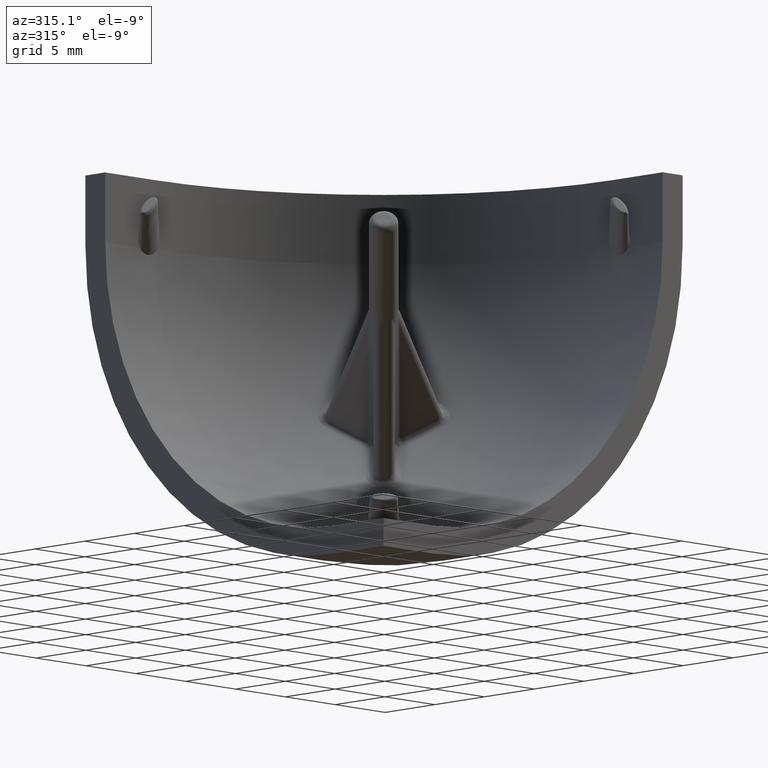
[diagram: clean part render]
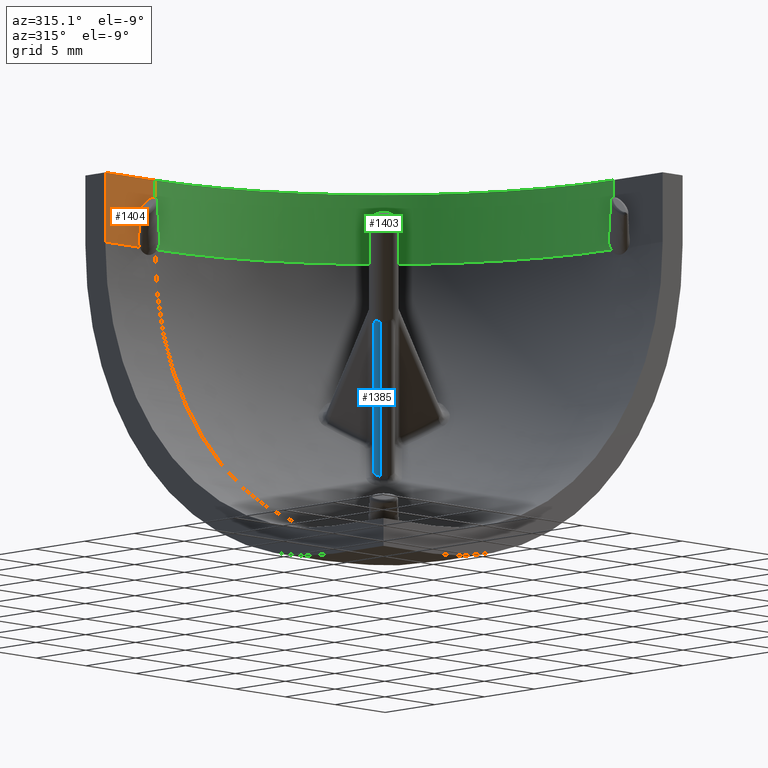
[diagram: same view with three faces highlighted in distinct colors, each labeled with its STEP entity id]
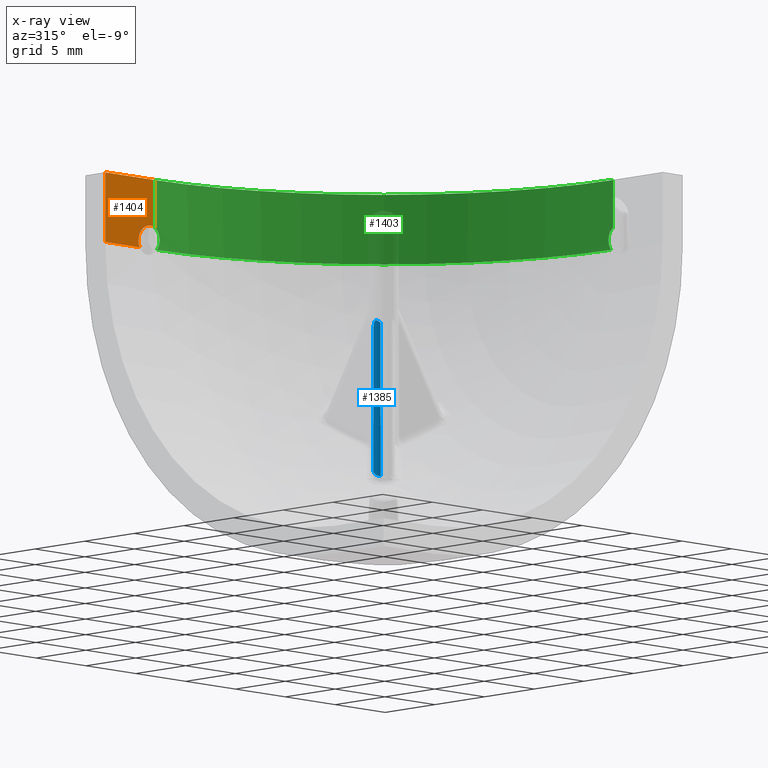
[diagram: x-ray of the same camera — body ghosted, the three highlighted faces saturated]
A machine part, auxiliary view with three faces highlighted in distinct colors.
The next image is the same camera in x-ray (body ghosted, the three faces saturated) — at least one of them is partly hidden behind the body in this view.
Their STEP definitions:

[orange] entity #1404 — the highlighted planar face has unit normal (0, -1, 0).
#20=PLANE('',#1557);
#216=FACE_OUTER_BOUND('',#306,.T.);
#306=EDGE_LOOP('',(#1093,#1094,#1095,#1096,#1097));
#396=LINE('',#5419,#454);
#411=LINE('',#5481,#469);
#412=LINE('',#5483,#470);
#413=LINE('',#5484,#471);
#454=VECTOR('',#1784,1000.);
#469=VECTOR('',#1821,1000.);
#470=VECTOR('',#1824,1000.);
#471=VECTOR('',#1825,1000.);
#493=B_SPLINE_CURVE_WITH_KNOTS('',3,(#2337,#2338,#2339,#2340,#2341,#2342,
#2343,#2344,#2345,#2346,#2347,#2348,#2349,#2350,#2351,#2352,#2353,#2354),
 .UNSPECIFIED.,.F.,.F.,(4,2,2,2,2,2,2,2,4),(-0.175158830343458,-0.150281693985812,
-0.132682597217302,-0.111386682224554,-0.0874374773800556,-0.0634960599441935,
-0.0422456438351034,-0.0247462977978103,-1.00000064903738E-6),
 .UNSPECIFIED.);
#562=VERTEX_POINT('',#2146);
#568=VERTEX_POINT('',#2330);
#661=VERTEX_POINT('',#5405);
#667=VERTEX_POINT('',#5417);
#679=VERTEX_POINT('',#5479);
#707=EDGE_CURVE('',#562,#568,#493,.T.);
#823=EDGE_CURVE('',#667,#661,#396,.T.);
#845=EDGE_CURVE('',#568,#679,#411,.T.);
#846=EDGE_CURVE('',#661,#679,#412,.T.);
#847=EDGE_CURVE('',#667,#562,#413,.T.);
#1093=ORIENTED_EDGE('',*,*,#707,.T.);
#1094=ORIENTED_EDGE('',*,*,#845,.T.);
#1095=ORIENTED_EDGE('',*,*,#846,.F.);
#1096=ORIENTED_EDGE('',*,*,#823,.F.);
#1097=ORIENTED_EDGE('',*,*,#847,.T.);
#1404=ADVANCED_FACE('',(#216),#20,.T.);
#1557=AXIS2_PLACEMENT_3D('',#5482,#1822,#1823);
#1784=DIRECTION('',(0.,0.,1.));
#1821=DIRECTION('',(0.,0.,1.));
#1822=DIRECTION('center_axis',(0.,-1.,0.));
#1823=DIRECTION('ref_axis',(0.,0.,-1.));
#1824=DIRECTION('',(1.,0.,0.));
#1825=DIRECTION('',(1.,0.,0.));
#2146=CARTESIAN_POINT('',(3.44771592869993,28.,-5.));
#2330=CARTESIAN_POINT('',(4.99999999999999,28.,-3.44771591022161));
#2337=CARTESIAN_POINT('Ctrl Pts',(3.44771592869995,28.,-4.99999999999999));
#2338=CARTESIAN_POINT('Ctrl Pts',(3.40447842649714,28.,-4.92949119405497));
#2339=CARTESIAN_POINT('Ctrl Pts',(3.37146025388926,27.9999999999999,-4.85429070616017));
#2340=CARTESIAN_POINT('Ctrl Pts',(3.33360077910329,27.9999999999999,-4.71889109964527));
#2341=CARTESIAN_POINT('Ctrl Pts',(3.31675925405084,28.,-4.63896858441278));
#2342=CARTESIAN_POINT('Ctrl Pts',(3.31600390730806,28.,-4.41350614569592));
#2343=CARTESIAN_POINT('Ctrl Pts',(3.34012062610048,28.000000000011,-4.27447569468825));
#2344=CARTESIAN_POINT('Ctrl Pts',(3.46631956890094,28.000000000011,-3.96642659211979));
#2345=CARTESIAN_POINT('Ctrl Pts',(3.5694310528274,28.,-3.81652393157946));
#2346=CARTESIAN_POINT('Ctrl Pts',(3.81794455940526,28.,-3.5683374429836));
#2347=CARTESIAN_POINT('Ctrl Pts',(3.96794335044046,28.0000000000116,-3.46543238256616));
#2348=CARTESIAN_POINT('Ctrl Pts',(4.27583596418542,28.0000000000116,-3.33980173023811));
#2349=CARTESIAN_POINT('Ctrl Pts',(4.41476653742614,28.,-3.31583051883537));
#2350=CARTESIAN_POINT('Ctrl Pts',(4.64001959710618,28.,-3.31691080541465));
#2351=CARTESIAN_POINT('Ctrl Pts',(4.71971963180852,27.9999999999999,-3.33378675359859));
#2352=CARTESIAN_POINT('Ctrl Pts',(4.85469935658813,27.9999999999999,-3.37163976929688));
#2353=CARTESIAN_POINT('Ctrl Pts',(4.92968289561505,28.,-3.40459602571644));
#2354=CARTESIAN_POINT('Ctrl Pts',(5.,28.,-3.44771591022161));
#5405=CARTESIAN_POINT('',(4.89858719658942E-16,28.,0.));
#5417=CARTESIAN_POINT('',(4.89858719658942E-16,28.,-5.));
#5419=CARTESIAN_POINT('',(4.89858719658942E-16,28.,-5.));
#5479=CARTESIAN_POINT('',(4.99999999999999,28.,0.));
#5481=CARTESIAN_POINT('',(4.99999999999999,28.,-5.));
#5482=CARTESIAN_POINT('Origin',(4.89858719658942E-16,28.,-5.));
#5483=CARTESIAN_POINT('',(4.89858719658942E-16,28.,0.));
#5484=CARTESIAN_POINT('',(4.89858719658942E-16,28.,-5.));

[blue] entity #1385 — the highlighted cylindrical surface (edge-blend (fillet) strip) has radius 0.5 mm, axis along (0.443, 0.443, -0.7795).
#67=ELLIPSE('',#1497,0.494300345772193,0.48532569774064);
#69=CYLINDRICAL_SURFACE('',#1496,0.5);
#197=FACE_OUTER_BOUND('',#286,.T.);
#286=EDGE_LOOP('',(#955,#956,#957,#958,#959,#960));
#378=LINE('',#3119,#436);
#379=LINE('',#3145,#437);
#436=VECTOR('',#1668,1000.);
#437=VECTOR('',#1671,1000.);
#506=B_SPLINE_CURVE_WITH_KNOTS('',3,(#2998,#2999,#3000,#3001,#3002,#3003,
#3004,#3005,#3006,#3007,#3008,#3009,#3010,#3011,#3012,#3013,#3014,#3015,
#3016,#3017,#3018,#3019,#3020,#3021,#3022,#3023,#3024,#3025,#3026,#3027,
#3028,#3029,#3030,#3031,#3032,#3033,#3034,#3035,#3036,#3037,#3038,#3039,
#3040,#3041,#3042,#3043,#3044,#3045,#3046,#3047,#3048,#3049,#3050,#3051,
#3052,#3053,#3054,#3055,#3056,#3057,#3058,#3059,#3060,#3061,#3062,#3063,
#3064,#3065,#3066,#3067),.UNSPECIFIED.,.F.,.F.,(4,3,3,3,3,3,3,3,3,3,3,3,
3,3,3,3,3,3,3,3,3,3,3,4),(0.,1.21604168909339E-5,6.23145992788702E-5,0.000103363543572938,
0.000109063738990563,0.000151815204622753,0.000173190937438848,0.000183878803846895,
0.000189222737050919,0.000189461569267208,0.00019189470365293,0.000193230686953936,
0.000194566670254942,0.000237756202463946,0.000243208337818678,0.000267529171600546,
0.000279689588491479,0.000291850005382413,0.000318580273448491,0.000340491672946149,
0.000343484275540402,0.000348131305899198,0.00037488141905195,0.000389133329631535),
 .UNSPECIFIED.);
#507=B_SPLINE_CURVE_WITH_KNOTS('',3,(#3069,#3070,#3071,#3072,#3073,#3074,
#3075,#3076,#3077,#3078,#3079,#3080,#3081,#3082,#3083,#3084,#3085,#3086,
#3087,#3088,#3089,#3090,#3091,#3092,#3093,#3094,#3095,#3096,#3097,#3098,
#3099,#3100,#3101,#3102,#3103,#3104,#3105,#3106,#3107,#3108,#3109,#3110,
#3111,#3112,#3113,#3114,#3115,#3116,#3117),.UNSPECIFIED.,.F.,.F.,(4,3,3,
3,3,3,3,3,3,3,3,3,3,3,3,3,4),(0.000389133340509884,0.000434118860242792,
0.000482000410648891,0.000533147194030287,0.000579224442896195,0.000641232107333754,
0.000708176886763642,0.000769315545282505,0.000865155897092198,0.000965506261390967,
0.00107339878355765,0.00114949775005513,0.00131003703189267,0.00148285701590434,
0.00166323795930211,0.00185391261857454,0.00190986215960037),
 .UNSPECIFIED.);
#508=B_SPLINE_CURVE_WITH_KNOTS('',3,(#3121,#3122,#3123,#3124,#3125,#3126,
#3127,#3128,#3129,#3130,#3131,#3132,#3133,#3134,#3135,#3136,#3137,#3138,
#3139,#3140,#3141,#3142),.UNSPECIFIED.,.F.,.F.,(4,3,3,3,3,3,3,4),(0.000330833548131547,
0.000393468235858931,0.000476909363737872,0.000563570859487154,0.000592210054781606,
0.00067839191388207,0.000758424460810747,0.000789896573302422),
 .UNSPECIFIED.);
#589=VERTEX_POINT('',#2996);
#590=VERTEX_POINT('',#2997);
#591=VERTEX_POINT('',#3068);
#592=VERTEX_POINT('',#3118);
#593=VERTEX_POINT('',#3120);
#594=VERTEX_POINT('',#3143);
#729=EDGE_CURVE('',#589,#590,#506,.T.);
#730=EDGE_CURVE('',#590,#591,#507,.T.);
#731=EDGE_CURVE('',#592,#591,#378,.T.);
#732=EDGE_CURVE('',#593,#592,#508,.T.);
#733=EDGE_CURVE('',#594,#593,#67,.T.);
#734=EDGE_CURVE('',#589,#594,#379,.T.);
#955=ORIENTED_EDGE('',*,*,#729,.T.);
#956=ORIENTED_EDGE('',*,*,#730,.T.);
#957=ORIENTED_EDGE('',*,*,#731,.F.);
#958=ORIENTED_EDGE('',*,*,#732,.F.);
#959=ORIENTED_EDGE('',*,*,#733,.F.);
#960=ORIENTED_EDGE('',*,*,#734,.F.);
#1385=ADVANCED_FACE('',(#197),#69,.T.);
#1496=AXIS2_PLACEMENT_3D('',#2995,#1666,#1667);
#1497=AXIS2_PLACEMENT_3D('',#3144,#1669,#1670);
#1666=DIRECTION('center_axis',(0.442957580289609,0.442957580289605,-0.779472362645369));
#1667=DIRECTION('ref_axis',(-0.869420357315985,1.11022302462516E-16,-0.49407311431057));
#1668=DIRECTION('',(-0.442957580289609,-0.442957580289605,0.779472362645369));
#1669=DIRECTION('center_axis',(0.526859442243335,0.557667829798084,-0.641424757650761));
#1670=DIRECTION('ref_axis',(-0.130326680782894,0.798740010524187,0.587391991657986));
#1671=DIRECTION('',(0.442957580289609,0.442957580289605,-0.779472362645369));
#2995=CARTESIAN_POINT('Origin',(2.37042743809843,2.72398082869166,2.8950439643636));
#2996=CARTESIAN_POINT('',(10.1745347901295,10.5280881807226,-11.6360074794579));
#2997=CARTESIAN_POINT('',(9.95059596554906,10.7388595348002,-11.4557729983149));
#2998=CARTESIAN_POINT('Ctrl Pts',(10.1745347901295,10.5280881807226,-11.6360074794579));
#2999=CARTESIAN_POINT('Ctrl Pts',(10.1713139960445,10.5285583889709,-11.6335873767933));
#3000=CARTESIAN_POINT('Ctrl Pts',(10.1680990514111,10.5290596258302,-11.6311673475238));
#3001=CARTESIAN_POINT('Ctrl Pts',(10.1648909537059,10.5295938396847,-11.6287485343768));
#3002=CARTESIAN_POINT('Ctrl Pts',(10.1516595391196,10.5317971407171,-11.6187724293777));
#3003=CARTESIAN_POINT('Ctrl Pts',(10.1385500140226,10.5345607270275,-11.6088246903261));
#3004=CARTESIAN_POINT('Ctrl Pts',(10.1256229884541,10.5380322057601,-11.5989629060723));
#3005=CARTESIAN_POINT('Ctrl Pts',(10.1150427989826,10.5408734550901,-11.5908914788611));
#3006=CARTESIAN_POINT('Ctrl Pts',(10.1045854026414,10.5441892988497,-11.5828777196605));
#3007=CARTESIAN_POINT('Ctrl Pts',(10.0943056491184,10.5480729137986,-11.574961296057));
#3008=CARTESIAN_POINT('Ctrl Pts',(10.0928781677316,10.5486122057223,-11.5738619946663));
#3009=CARTESIAN_POINT('Ctrl Pts',(10.0914540372767,10.5491624433896,-11.5727644569218));
#3010=CARTESIAN_POINT('Ctrl Pts',(10.0900333955908,10.549723883866,-11.5716687488645));
#3011=CARTESIAN_POINT('Ctrl Pts',(10.0793785829461,10.5539346874384,-11.5634509384343));
#3012=CARTESIAN_POINT('Ctrl Pts',(10.0689187930013,10.5587751349882,-11.5553370352308));
#3013=CARTESIAN_POINT('Ctrl Pts',(10.0587201325,10.5643575709309,-11.5473481453466));
#3014=CARTESIAN_POINT('Ctrl Pts',(10.0536208022494,10.5671487889023,-11.5433537004045));
#3015=CARTESIAN_POINT('Ctrl Pts',(10.0485869867857,10.5701256063744,-11.5393903182429));
#3016=CARTESIAN_POINT('Ctrl Pts',(10.0436285938215,10.573302442729,-11.5354594929299));
#3017=CARTESIAN_POINT('Ctrl Pts',(10.0411493973393,10.5748908609063,-11.5334940802734));
#3018=CARTESIAN_POINT('Ctrl Pts',(10.0386890756627,10.5765292857627,-11.5315367949198));
#3019=CARTESIAN_POINT('Ctrl Pts',(10.0362489891556,10.5782195210228,-11.5295877539873));
#3020=CARTESIAN_POINT('Ctrl Pts',(10.0350289459021,10.5790646386529,-11.528613233521));
#3021=CARTESIAN_POINT('Ctrl Pts',(10.0338139627659,10.5799227088118,-11.5276407734499));
#3022=CARTESIAN_POINT('Ctrl Pts',(10.0326042179126,10.5807939561504,-11.5266703842458));
#3023=CARTESIAN_POINT('Ctrl Pts',(10.0325501517345,10.5808328941245,-11.5266270154021));
#3024=CARTESIAN_POINT('Ctrl Pts',(10.0324960954926,10.5808718578783,-11.5265836497587));
#3025=CARTESIAN_POINT('Ctrl Pts',(10.0324420491539,10.5809108474014,-11.5265402872406));
#3026=CARTESIAN_POINT('Ctrl Pts',(10.0318914450221,10.5813080582587,-11.5260985259256));
#3027=CARTESIAN_POINT('Ctrl Pts',(10.0313420344176,10.5817080647716,-11.5256571687555));
#3028=CARTESIAN_POINT('Ctrl Pts',(10.0307937938415,10.5821108479024,-11.5252161549249));
#3029=CARTESIAN_POINT('Ctrl Pts',(10.0304927663853,10.5823320077117,-11.5249740034364));
#3030=CARTESIAN_POINT('Ctrl Pts',(10.0301920955952,10.5825540085198,-11.5247319623221));
#3031=CARTESIAN_POINT('Ctrl Pts',(10.0298917837925,10.5827768533052,-11.5244900323185));
#3032=CARTESIAN_POINT('Ctrl Pts',(10.0295914719899,10.5829996980907,-11.5242481023149));
#3033=CARTESIAN_POINT('Ctrl Pts',(10.0292915191747,10.5832233868535,-11.5240062834218));
#3034=CARTESIAN_POINT('Ctrl Pts',(10.0289919276964,10.5834479225799,-11.5237645763544));
#3035=CARTESIAN_POINT('Ctrl Pts',(10.0193067648714,10.590706690693,-11.5159506948732));
#3036=CARTESIAN_POINT('Ctrl Pts',(10.0100250595035,10.5989245758028,-11.5083219694075));
#3037=CARTESIAN_POINT('Ctrl Pts',(10.0014640942663,10.6081409175442,-11.5011650022128));
#3038=CARTESIAN_POINT('Ctrl Pts',(10.0003833800549,10.6093043647982,-11.5002615250997));
#3039=CARTESIAN_POINT('Ctrl Pts',(9.99931415342919,10.6104836591383,-11.4993655884007));
#3040=CARTESIAN_POINT('Ctrl Pts',(9.99825705108714,10.6116788234822,-11.4984777850816));
#3041=CARTESIAN_POINT('Ctrl Pts',(9.99354153896598,10.6170102012744,-11.4945174804396));
#3042=CARTESIAN_POINT('Ctrl Pts',(9.98906678097946,10.6226588835868,-11.4907188527433));
#3043=CARTESIAN_POINT('Ctrl Pts',(9.98488701950129,10.6286313865546,-11.487134620676));
#3044=CARTESIAN_POINT('Ctrl Pts',(9.98279713876221,10.6316176380386,-11.4853425046423));
#3045=CARTESIAN_POINT('Ctrl Pts',(9.98078098695126,10.6346848513026,-11.4836039954248));
#3046=CARTESIAN_POINT('Ctrl Pts',(9.97884524598428,10.6378338979476,-11.4819257068373));
#3047=CARTESIAN_POINT('Ctrl Pts',(9.97690950501729,10.6409829445925,-11.4802474182499));
#3048=CARTESIAN_POINT('Ctrl Pts',(9.97505417362725,10.6442138238941,-11.4786293514749));
#3049=CARTESIAN_POINT('Ctrl Pts',(9.97328589128512,10.6475274609818,-11.4770781135421));
#3050=CARTESIAN_POINT('Ctrl Pts',(9.96939896360446,10.6548112908392,-11.4736682793111));
#3051=CARTESIAN_POINT('Ctrl Pts',(9.96593345811436,10.6625044315913,-11.4705827785743));
#3052=CARTESIAN_POINT('Ctrl Pts',(9.96297215976699,10.6705266609972,-11.4678957413012));
#3053=CARTESIAN_POINT('Ctrl Pts',(9.96054471717792,10.677102662141,-11.4656931166583));
#3054=CARTESIAN_POINT('Ctrl Pts',(9.95845558870772,10.6838993798643,-11.4637580103015));
#3055=CARTESIAN_POINT('Ctrl Pts',(9.95673097141547,10.6908632324915,-11.4621161294073));
#3056=CARTESIAN_POINT('Ctrl Pts',(9.95649542762085,10.6918143375745,-11.4618918855372));
#3057=CARTESIAN_POINT('Ctrl Pts',(9.95626678585052,10.6927685557406,-11.4616732987005));
#3058=CARTESIAN_POINT('Ctrl Pts',(9.95604510024675,10.6937257121487,-11.4614604354173));
#3059=CARTESIAN_POINT('Ctrl Pts',(9.95570085817037,10.6952120220566,-11.4611298929854));
#3060=CARTESIAN_POINT('Ctrl Pts',(9.95537290453642,10.69670461457,-11.4608122492628));
#3061=CARTESIAN_POINT('Ctrl Pts',(9.95506141835554,10.698203006632,-11.4605077857091));
#3062=CARTESIAN_POINT('Ctrl Pts',(9.95326838281651,10.7068283338003,-11.4587551751422));
#3063=CARTESIAN_POINT('Ctrl Pts',(9.95204326305164,10.7156684251999,-11.4574745971924));
#3064=CARTESIAN_POINT('Ctrl Pts',(9.95133980477915,10.7245799874071,-11.4566588561585));
#3065=CARTESIAN_POINT('Ctrl Pts',(9.95096501666746,10.7293278846207,-11.4562242460989));
#3066=CARTESIAN_POINT('Ctrl Pts',(9.95073769328924,10.7340956635298,-11.4559209776934));
#3067=CARTESIAN_POINT('Ctrl Pts',(9.95064695951752,10.7388594199563,-11.4557440492992));
#3068=CARTESIAN_POINT('',(10.6581101889243,11.718770360704,-12.3109374908465));
#3069=CARTESIAN_POINT('Ctrl Pts',(9.95059596554906,10.7388595348002,-11.4557729983149));
#3070=CARTESIAN_POINT('Ctrl Pts',(9.95028580637003,10.7538975970338,-11.4552272112715));
#3071=CARTESIAN_POINT('Ctrl Pts',(9.95131151892054,10.7688342752421,-11.4558900321904));
#3072=CARTESIAN_POINT('Ctrl Pts',(9.953352393632,10.7835583792028,-11.4575755092379));
#3073=CARTESIAN_POINT('Ctrl Pts',(9.95552465363811,10.7992303761068,-11.4593694921614));
#3074=CARTESIAN_POINT('Ctrl Pts',(9.95884672396442,10.8146621406943,-11.4623218543471));
#3075=CARTESIAN_POINT('Ctrl Pts',(9.96297177569662,10.8297434979262,-11.4661721164896));
#3076=CARTESIAN_POINT('Ctrl Pts',(9.96737813107973,10.8458533127692,-11.4702849432902));
#3077=CARTESIAN_POINT('Ctrl Pts',(9.97270057562569,10.8615639069048,-11.47542204464));
#3078=CARTESIAN_POINT('Ctrl Pts',(9.97856393992661,10.876757627125,-11.481229453593));
#3079=CARTESIAN_POINT('Ctrl Pts',(9.98384614299441,10.8904453857971,-11.4864612474596));
#3080=CARTESIAN_POINT('Ctrl Pts',(9.989568228509,10.9037141298649,-11.4922362873586));
#3081=CARTESIAN_POINT('Ctrl Pts',(9.99548563182656,10.9164828160728,-11.4982760420494));
#3082=CARTESIAN_POINT('Ctrl Pts',(10.0034488754726,10.9336660557231,-11.5064039379498));
#3083=CARTESIAN_POINT('Ctrl Pts',(10.0119371208706,10.9502974377525,-11.5151969957442));
#3084=CARTESIAN_POINT('Ctrl Pts',(10.0207769726825,10.9664594627374,-11.5245325684857));
#3085=CARTESIAN_POINT('Ctrl Pts',(10.0303206627265,10.9839083250284,-11.5346114492772));
#3086=CARTESIAN_POINT('Ctrl Pts',(10.0402743286973,11.0008105694492,-11.5453223311171));
#3087=CARTESIAN_POINT('Ctrl Pts',(10.0504762655547,11.0172662228222,-11.5564809270321));
#3088=CARTESIAN_POINT('Ctrl Pts',(10.0597933883994,11.0322946773313,-11.5666717378916));
#3089=CARTESIAN_POINT('Ctrl Pts',(10.069318683627,11.0469507006084,-11.5772353151582));
#3090=CARTESIAN_POINT('Ctrl Pts',(10.0789627439389,11.0613042526767,-11.5880156357745));
#3091=CARTESIAN_POINT('Ctrl Pts',(10.0940806767749,11.083804737857,-11.6049147589402));
#3092=CARTESIAN_POINT('Ctrl Pts',(10.109535304176,11.1056220085928,-11.6224002273071));
#3093=CARTESIAN_POINT('Ctrl Pts',(10.1251908834636,11.1268782239296,-11.6403834825242));
#3094=CARTESIAN_POINT('Ctrl Pts',(10.1415831760121,11.1491347047582,-11.6592129857371));
#3095=CARTESIAN_POINT('Ctrl Pts',(10.1581962392116,11.1707764436893,-11.6785877608889));
#3096=CARTESIAN_POINT('Ctrl Pts',(10.1749287609338,11.1919322529764,-11.6983816612031));
#3097=CARTESIAN_POINT('Ctrl Pts',(10.1929188697235,11.2146780958879,-11.7196632364454));
#3098=CARTESIAN_POINT('Ctrl Pts',(10.2110473816445,11.236862542583,-11.7414289450729));
#3099=CARTESIAN_POINT('Ctrl Pts',(10.2292439292301,11.2586271783273,-11.7635009574222));
#3100=CARTESIAN_POINT('Ctrl Pts',(10.2420783540565,11.2739782541301,-11.7790688326982));
#3101=CARTESIAN_POINT('Ctrl Pts',(10.2549478092962,11.2891200690558,-11.7947886498768));
#3102=CARTESIAN_POINT('Ctrl Pts',(10.2678410840447,11.3040963558414,-11.8105937308787));
#3103=CARTESIAN_POINT('Ctrl Pts',(10.2950408892975,11.3356905079804,-11.8439363171214));
#3104=CARTESIAN_POINT('Ctrl Pts',(10.3223877782407,11.3665739667545,-11.8777813207944));
#3105=CARTESIAN_POINT('Ctrl Pts',(10.3497953141171,11.3968864353208,-11.9120703863764));
#3106=CARTESIAN_POINT('Ctrl Pts',(10.3792994320983,11.4295177033383,-11.9489824473862));
#3107=CARTESIAN_POINT('Ctrl Pts',(10.408874064611,11.4614876822096,-11.9864087469269));
#3108=CARTESIAN_POINT('Ctrl Pts',(10.4384658995574,11.492950014833,-12.0242572328639));
#3109=CARTESIAN_POINT('Ctrl Pts',(10.4693523918518,11.5257888399986,-12.0637616086949));
#3110=CARTESIAN_POINT('Ctrl Pts',(10.5002581711024,11.5580748041121,-12.1037255100073));
#3111=CARTESIAN_POINT('Ctrl Pts',(10.5311731445833,11.5899564746396,-12.14403040559));
#3112=CARTESIAN_POINT('Ctrl Pts',(10.5638523285584,11.6236575217146,-12.1866353620087));
#3113=CARTESIAN_POINT('Ctrl Pts',(10.5965421990019,11.6569070017612,-12.2296210012878));
#3114=CARTESIAN_POINT('Ctrl Pts',(10.6292784727974,11.6898489197283,-12.272838135335));
#3115=CARTESIAN_POINT('Ctrl Pts',(10.6388842562862,11.6995150452523,-12.285519310818));
#3116=CARTESIAN_POINT('Ctrl Pts',(10.6484943111174,11.7091544828971,-12.2982203787237));
#3117=CARTESIAN_POINT('Ctrl Pts',(10.6581101889243,11.718770360704,-12.3109374908465));
#3118=CARTESIAN_POINT('',(15.606831018238,16.6674911900176,-21.0192005131781));
#3119=CARTESIAN_POINT('',(2.01687404750516,3.07753421928494,2.8950439643636));
#3120=CARTESIAN_POINT('',(15.5625663212241,16.3508172596511,-21.3311266504334));
#3121=CARTESIAN_POINT('Ctrl Pts',(15.5625789589325,16.3508172655439,-21.3311194640946));
#3122=CARTESIAN_POINT('Ctrl Pts',(15.5566848036729,16.3682890561332,-21.320768482893));
#3123=CARTESIAN_POINT('Ctrl Pts',(15.5518812160942,16.3855674767169,-21.3096891963895));
#3124=CARTESIAN_POINT('Ctrl Pts',(15.5481857408612,16.4025365002,-21.2979677559691));
#3125=CARTESIAN_POINT('Ctrl Pts',(15.5432626761396,16.425142415705,-21.2823526033351));
#3126=CARTESIAN_POINT('Ctrl Pts',(15.5402954427119,16.4473213585273,-21.2655003379045));
#3127=CARTESIAN_POINT('Ctrl Pts',(15.5392339764909,16.4687797456269,-21.2477068727563));
#3128=CARTESIAN_POINT('Ctrl Pts',(15.5381315435212,16.4910663082571,-21.229226677875));
#3129=CARTESIAN_POINT('Ctrl Pts',(15.5390845893826,16.5125770019562,-21.2097302241097));
#3130=CARTESIAN_POINT('Ctrl Pts',(15.5420807783765,16.5329786521031,-21.1895167586217));
#3131=CARTESIAN_POINT('Ctrl Pts',(15.5430709348583,16.5397208256351,-21.1828367748447));
#3132=CARTESIAN_POINT('Ctrl Pts',(15.5442845856284,16.5463417524806,-21.1760782992026));
#3133=CARTESIAN_POINT('Ctrl Pts',(15.5457223478981,16.552828898676,-21.1692517004375));
#3134=CARTESIAN_POINT('Ctrl Pts',(15.5500489019119,16.5723501985458,-21.1487089105));
#3135=CARTESIAN_POINT('Ctrl Pts',(15.5564704217787,16.5908685409186,-21.1273138710103));
#3136=CARTESIAN_POINT('Ctrl Pts',(15.5648371968634,16.6080734356561,-21.1054597314076));
#3137=CARTESIAN_POINT('Ctrl Pts',(15.5726069795833,16.6240507139354,-21.0851649446439));
#3138=CARTESIAN_POINT('Ctrl Pts',(15.5820551543289,16.6388958356768,-21.0644730806417));
#3139=CARTESIAN_POINT('Ctrl Pts',(15.5930866738085,16.6523253143586,-21.0437088241463));
#3140=CARTESIAN_POINT('Ctrl Pts',(15.597424724206,16.6576063416406,-21.0355434584131));
#3141=CARTESIAN_POINT('Ctrl Pts',(15.6020078428565,16.6626680146362,-21.0273670988799));
#3142=CARTESIAN_POINT('Ctrl Pts',(15.6068310182379,16.6674911900177,-21.0192005131781));
#3143=CARTESIAN_POINT('',(15.7340577885968,16.0876111791899,-21.4190989528296));
#3144=CARTESIAN_POINT('Origin',(15.9516615060706,16.3148369074948,-21.0428068794142));
#3145=CARTESIAN_POINT('',(2.09484234141141,2.44839573200464,2.58182565556283));

[green] entity #1403 — the highlighted cylindrical surface (partial cylindrical patch) has radius 23 mm, axis along (0, 0, 1).
#74=CYLINDRICAL_SURFACE('',#1555,23.);
#114=CIRCLE('',#1528,23.);
#135=CIRCLE('',#1556,23.);
#215=FACE_OUTER_BOUND('',#305,.T.);
#305=EDGE_LOOP('',(#1085,#1086,#1087,#1088,#1089,#1090,#1091,#1092));
#410=LINE('',#5453,#468);
#411=LINE('',#5481,#469);
#468=VECTOR('',#1816,1000.);
#469=VECTOR('',#1821,1000.);
#492=B_SPLINE_CURVE_WITH_KNOTS('',3,(#2331,#2332,#2333,#2334,#2335,#2336),
 .UNSPECIFIED.,.F.,.F.,(4,2,4),(-0.0196975459593045,-0.00984109633597265,
-9.99999562413534E-7),.UNSPECIFIED.);
#494=B_SPLINE_CURVE_WITH_KNOTS('',3,(#2483,#2484,#2485,#2486,#2487,#2488),
 .UNSPECIFIED.,.F.,.F.,(4,2,4),(-0.0197048987796341,-0.00986073439691144,
-9.99999727570859E-7),.UNSPECIFIED.);
#542=B_SPLINE_CURVE_WITH_KNOTS('',3,(#5455,#5456,#5457,#5458,#5459,#5460,
#5461,#5462,#5463,#5464,#5465,#5466),.UNSPECIFIED.,.F.,.F.,(4,2,2,2,2,4),
(-0.0952575882703191,-0.0835706036360662,-0.0668913170508683,-0.0406996222693887,
-0.0203613056663519,-9.99999175799182E-7),.UNSPECIFIED.);
#543=B_SPLINE_CURVE_WITH_KNOTS('',3,(#5467,#5468,#5469,#5470,#5471,#5472,
#5473,#5474,#5475,#5476,#5477,#5478),.UNSPECIFIED.,.F.,.F.,(4,2,2,2,2,4),
(-0.255815654757997,-0.209063237569232,-0.1623482072422,-0.0887220945943396,
-0.0365571810754141,-9.99999940687335E-7),.UNSPECIFIED.);
#567=VERTEX_POINT('',#2328);
#568=VERTEX_POINT('',#2330);
#569=VERTEX_POINT('',#2481);
#570=VERTEX_POINT('',#2482);
#641=VERTEX_POINT('',#5025);
#642=VERTEX_POINT('',#5026);
#678=VERTEX_POINT('',#5451);
#679=VERTEX_POINT('',#5479);
#706=EDGE_CURVE('',#567,#568,#492,.T.);
#708=EDGE_CURVE('',#569,#570,#494,.T.);
#792=EDGE_CURVE('',#641,#642,#114,.T.);
#841=EDGE_CURVE('',#569,#678,#410,.T.);
#842=EDGE_CURVE('',#641,#567,#542,.T.);
#843=EDGE_CURVE('',#570,#642,#543,.T.);
#844=EDGE_CURVE('',#679,#678,#135,.T.);
#845=EDGE_CURVE('',#568,#679,#411,.T.);
#1085=ORIENTED_EDGE('',*,*,#842,.F.);
#1086=ORIENTED_EDGE('',*,*,#792,.T.);
#1087=ORIENTED_EDGE('',*,*,#843,.F.);
#1088=ORIENTED_EDGE('',*,*,#708,.F.);
#1089=ORIENTED_EDGE('',*,*,#841,.T.);
#1090=ORIENTED_EDGE('',*,*,#844,.F.);
#1091=ORIENTED_EDGE('',*,*,#845,.F.);
#1092=ORIENTED_EDGE('',*,*,#706,.F.);
#1403=ADVANCED_FACE('',(#215),#74,.F.);
#1528=AXIS2_PLACEMENT_3D('',#5027,#1743,#1744);
#1555=AXIS2_PLACEMENT_3D('',#5454,#1817,#1818);
#1556=AXIS2_PLACEMENT_3D('',#5480,#1819,#1820);
#1743=DIRECTION('center_axis',(0.,0.,-1.));
#1744=DIRECTION('ref_axis',(1.,0.,0.));
#1816=DIRECTION('',(0.,0.,1.));
#1817=DIRECTION('center_axis',(0.,0.,1.));
#1818=DIRECTION('ref_axis',(1.,0.,0.));
#1819=DIRECTION('center_axis',(0.,0.,-1.));
#1820=DIRECTION('ref_axis',(1.,0.,0.));
#1821=DIRECTION('',(0.,0.,1.));
#2328=CARTESIAN_POINT('',(5.15632217425828,27.9994687629483,-3.56746331596254));
#2330=CARTESIAN_POINT('',(4.99999999999999,28.,-3.44771591022161));
#2331=CARTESIAN_POINT('Ctrl Pts',(5.15632217425828,27.9994687629483,-3.56746331596254));
#2332=CARTESIAN_POINT('Ctrl Pts',(5.13242878884411,27.9996311608714,-3.54489018776796));
#2333=CARTESIAN_POINT('Ctrl Pts',(5.10727103652993,27.9997646448781,-3.52350515822146));
#2334=CARTESIAN_POINT('Ctrl Pts',(5.05513055224987,27.9999486773355,-3.4835659397966));
#2335=CARTESIAN_POINT('Ctrl Pts',(5.02796448120679,28.,-3.46486430122022));
#2336=CARTESIAN_POINT('Ctrl Pts',(4.99999999999999,28.,-3.44771591022161));
#2481=CARTESIAN_POINT('',(28.,5.,-3.44771592870021));
#2482=CARTESIAN_POINT('',(27.9994687629484,5.15632217423654,-3.56746331594193));
#2483=CARTESIAN_POINT('Ctrl Pts',(28.,5.,-3.44771592870021));
#2484=CARTESIAN_POINT('Ctrl Pts',(28.,5.02796412664775,-3.46486412701852));
#2485=CARTESIAN_POINT('Ctrl Pts',(27.999948678428,5.05512995979828,-3.48356560203562));
#2486=CARTESIAN_POINT('Ctrl Pts',(27.9997646573916,5.10726777454302,-3.52350265941915));
#2487=CARTESIAN_POINT('Ctrl Pts',(27.9996311461645,5.13243095263539,-3.54489222968791));
#2488=CARTESIAN_POINT('Ctrl Pts',(27.9994687629485,5.15632217423654,-3.56746331594193));
#5025=CARTESIAN_POINT('',(5.19100617487948,27.9992068698283,-4.99999999999998));
#5026=CARTESIAN_POINT('',(27.9992068698283,5.19100617487953,-5.));
#5027=CARTESIAN_POINT('Origin',(5.,5.,-5.));
#5451=CARTESIAN_POINT('',(28.,5.,0.));
#5453=CARTESIAN_POINT('',(28.,5.,-5.));
#5454=CARTESIAN_POINT('Origin',(5.,5.,-5.));
#5455=CARTESIAN_POINT('Ctrl Pts',(5.19100617487948,27.9992068698283,-4.99999999999998));
#5456=CARTESIAN_POINT('Ctrl Pts',(5.26687294273663,27.9985768037043,-4.90489944157419));
#5457=CARTESIAN_POINT('Ctrl Pts',(5.32923245931998,27.9976880816451,-4.79868725832621));
#5458=CARTESIAN_POINT('Ctrl Pts',(5.43914238063437,27.9958981492566,-4.52458100105343));
#5459=CARTESIAN_POINT('Ctrl Pts',(5.4566047932683,27.9954672148009,-4.38079688687408));
#5460=CARTESIAN_POINT('Ctrl Pts',(5.45815568866926,27.9954363790528,-4.10529045889892));
#5461=CARTESIAN_POINT('Ctrl Pts',(5.41803360337719,27.9962243116966,-3.97975966235841));
#5462=CARTESIAN_POINT('Ctrl Pts',(5.35953292084045,27.9972039631686,-3.83750615332032));
#5463=CARTESIAN_POINT('Ctrl Pts',(5.3275030065856,27.9977001927489,-3.77833219634689));
#5464=CARTESIAN_POINT('Ctrl Pts',(5.25072451324387,27.9986654564743,-3.66683467963108));
#5465=CARTESIAN_POINT('Ctrl Pts',(5.20565541694013,27.9991334560837,-3.61407059207717));
#5466=CARTESIAN_POINT('Ctrl Pts',(5.15632217425828,27.9994687629483,-3.56746331596254));
#5467=CARTESIAN_POINT('Ctrl Pts',(27.9994687629485,5.15632217423654,-3.56746331594193));
#5468=CARTESIAN_POINT('Ctrl Pts',(27.9991344857868,5.20550391813201,-3.61392746926653));
#5469=CARTESIAN_POINT('Ctrl Pts',(27.9986683696146,5.2504448847716,-3.66650798843144));
#5470=CARTESIAN_POINT('Ctrl Pts',(27.9977061811203,5.32707411011107,-3.77763083128192));
#5471=CARTESIAN_POINT('Ctrl Pts',(27.9972114040754,5.3590568327763,-3.83658249021428));
#5472=CARTESIAN_POINT('Ctrl Pts',(27.9961095626372,5.42493522357982,-3.99617873457238));
#5473=CARTESIAN_POINT('Ctrl Pts',(27.9954420416542,5.45787087642118,-4.12063308983894));
#5474=CARTESIAN_POINT('Ctrl Pts',(27.9954643271768,5.45675003412222,-4.37970799208435));
#5475=CARTESIAN_POINT('Ctrl Pts',(27.9958937121083,5.43937730034401,-4.52376942306227));
#5476=CARTESIAN_POINT('Ctrl Pts',(27.9976852742859,5.32943104495748,-4.79834953077216));
#5477=CARTESIAN_POINT('Ctrl Pts',(27.9985757724989,5.26699711099734,-4.90474379409818));
#5478=CARTESIAN_POINT('Ctrl Pts',(27.9992068698283,5.1910061748795,-4.99999999999999));
#5479=CARTESIAN_POINT('',(4.99999999999999,28.,0.));
#5480=CARTESIAN_POINT('Origin',(5.,5.,0.));
#5481=CARTESIAN_POINT('',(4.99999999999999,28.,-5.));